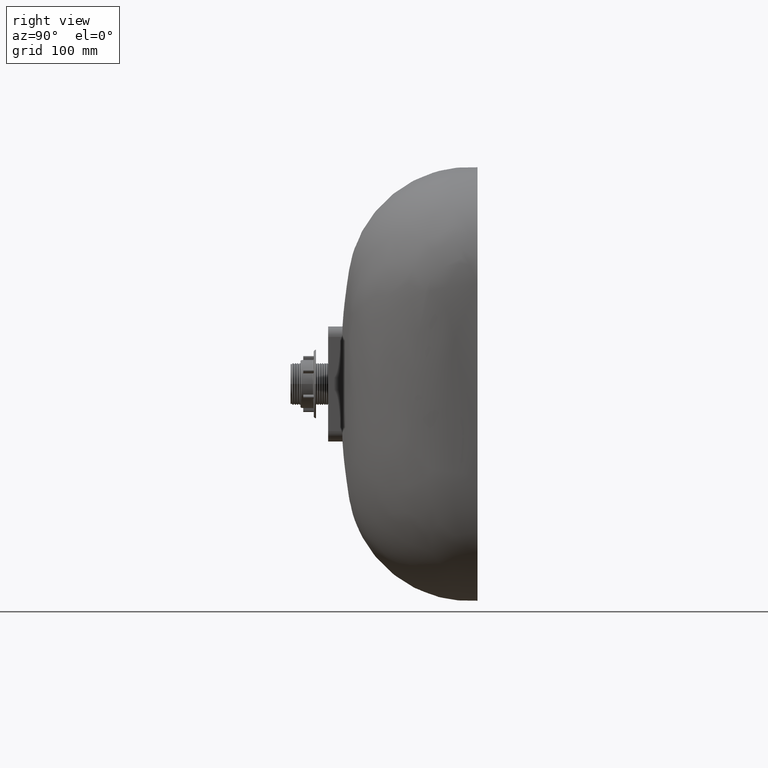
[diagram: clean part render]
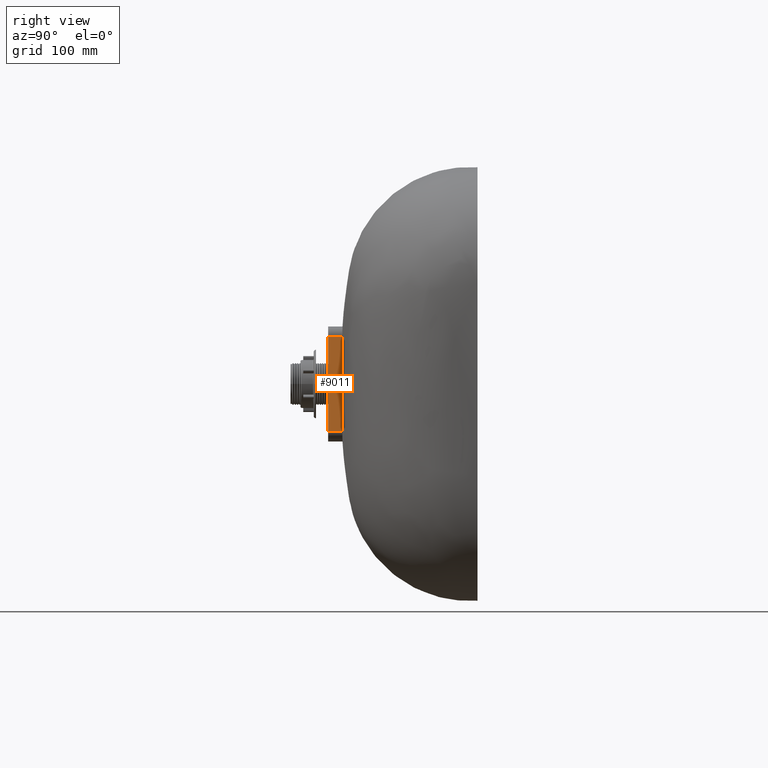
[diagram: same view with one face highlighted and labeled with its STEP entity id]
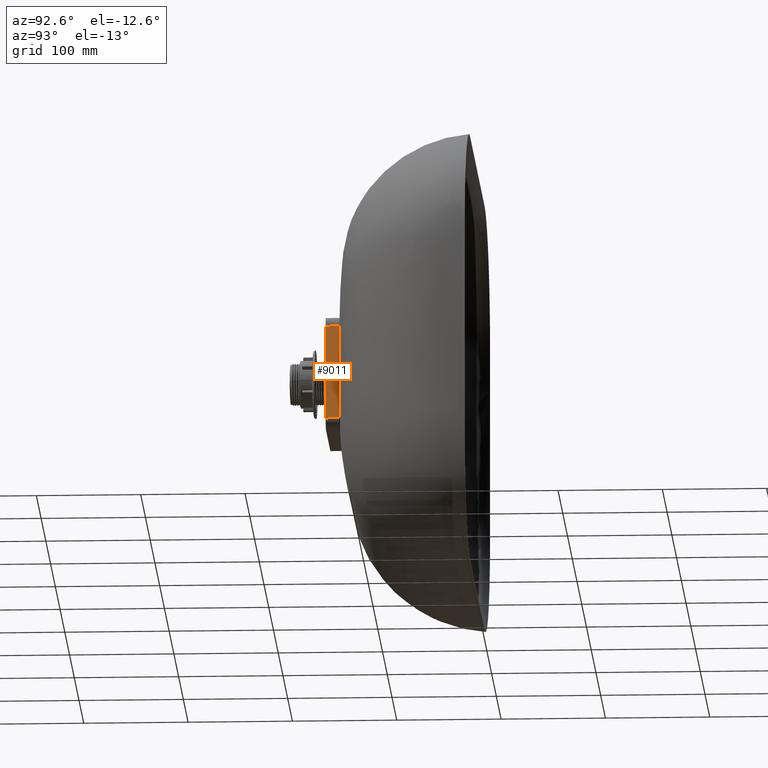
[diagram: same view with one face highlighted and labeled with its STEP entity id]
A machine part, right view. The second image highlights one B-rep face of the part: STEP entity #9011.
A second angle (auxiliary view) of the same face is appended — the face is thin or edge-on in the first view.
In plain terms, the highlighted planar face has unit normal (-1, 0, 0).
Its self-contained STEP definition (entity closure, byte-faithful):
#555 = CARTESIAN_POINT ( 'NONE',  ( 54.99999999999997900, -129.5138087378317900, -26.25021966743065600 ) ) ;
#1677 = CARTESIAN_POINT ( 'NONE',  ( 55.00000000000003600, -129.5902809703571800, -7.500079355521435800 ) ) ;
#1827 = EDGE_CURVE ( 'NONE', #11062, #11723, #8277, .T. ) ;
#2661 = ORIENTED_EDGE ( 'NONE', *, *, #5420, .T. ) ;
#2734 = CARTESIAN_POINT ( 'NONE',  ( 54.99999999999999300, -129.3747582021751400, -45.00000000000000000 ) ) ;
#2784 = CARTESIAN_POINT ( 'NONE',  ( 55.00000000000001400, -129.5672480042459300, 15.00019036894696400 ) ) ;
#2888 = B_SPLINE_CURVE_WITH_KNOTS ( 'NONE', 3,
 ( #2734, #4939, #13664, #7127, #555, #8225, #1677, #9324, #2784, #10426, #3879, #11533, #4984, #12627 ),
 .UNSPECIFIED., .F., .F.,
 ( 4, 2, 2, 2, 2, 2, 4 ),
 ( 2.310818364142162500E-015, 0.01125018086509841800, 0.02250036173019452600, 0.04500072346038674200, 0.06750108519057897200, 0.07875126605567507600, 0.09000144692077118000 ),
 .UNSPECIFIED. ) ;
#3181 = VERTEX_POINT ( 'NONE', #4062 ) ;
#3714 = EDGE_CURVE ( 'NONE', #11062, #6126, #2888, .T. ) ;
#3879 = CARTESIAN_POINT ( 'NONE',  ( 55.00000000000002800, -129.4913787024118500, 30.00022593502595900 ) ) ;
#4062 = CARTESIAN_POINT ( 'NONE',  ( 55.00000000000000700, -143.0000000000000300, 45.00000000000000000 ) ) ;
#4202 = VECTOR ( 'NONE', #9580, 1000.000000000000000 ) ;
#4479 = EDGE_LOOP ( 'NONE', ( #9626, #5077, #2661, #10976 ) ) ;
#4667 = PLANE ( 'NONE',  #9904 ) ;
#4939 = CARTESIAN_POINT ( 'NONE',  ( 54.99999999999997200, -129.4095024525357500, -41.25009709197533400 ) ) ;
#4984 = CARTESIAN_POINT ( 'NONE',  ( 54.99999999999998600, -129.4095024211454800, 41.25010048090150900 ) ) ;
#5077 = ORIENTED_EDGE ( 'NONE', *, *, #3714, .T. ) ;
#5420 = EDGE_CURVE ( 'NONE', #6126, #3181, #10796, .T. ) ;
#5633 = CARTESIAN_POINT ( 'NONE',  ( 54.99999999999999300, 500000.0000000000600, -45.00000000000000000 ) ) ;
#5779 = DIRECTION ( 'NONE',  ( 1.541976423090495100E-016, 0.0000000000000000000, 1.000000000000000000 ) ) ;
#6126 = VERTEX_POINT ( 'NONE', #13585 ) ;
#7127 = CARTESIAN_POINT ( 'NONE',  ( 54.99999999999996400, -129.4913787928155700, -30.00021210147710300 ) ) ;
#7308 = CARTESIAN_POINT ( 'NONE',  ( 54.99999999999999300, -143.0000000000000300, -45.00000000000000000 ) ) ;
#7314 = CARTESIAN_POINT ( 'NONE',  ( 55.00000000000000700, 500000.0000000000600, 45.00000000000000000 ) ) ;
#7627 = FACE_OUTER_BOUND ( 'NONE', #4479, .T. ) ;
#7947 = VECTOR ( 'NONE', #8950, 1000.000000000000000 ) ;
#8225 = CARTESIAN_POINT ( 'NONE',  ( 54.99999999999997200, -129.5672479842285700, -15.00019247676076400 ) ) ;
#8277 = LINE ( 'NONE', #5633, #7947 ) ;
#8950 = DIRECTION ( 'NONE',  ( -0.0000000000000000000, -1.000000000000000000, -0.0000000000000000000 ) ) ;
#9011 = ADVANCED_FACE ( 'NONE', ( #7627 ), #4667, .F. ) ;
#9324 = CARTESIAN_POINT ( 'NONE',  ( 55.00000000000002800, -129.5902808977694700, 7.500114897266552600 ) ) ;
#9469 = EDGE_CURVE ( 'NONE', #11723, #3181, #12234, .T. ) ;
#9580 = DIRECTION ( 'NONE',  ( 1.541976423090495400E-016, -0.0000000000000000000, 1.000000000000000000 ) ) ;
#9626 = ORIENTED_EDGE ( 'NONE', *, *, #1827, .F. ) ;
#9904 = AXIS2_PLACEMENT_3D ( 'NONE', #13347, #12306, #5779 ) ;
#10426 = CARTESIAN_POINT ( 'NONE',  ( 55.00000000000002100, -129.5138086638232800, 26.25023419460125900 ) ) ;
#10796 = LINE ( 'NONE', #7314, #13667 ) ;
#10976 = ORIENTED_EDGE ( 'NONE', *, *, #9469, .F. ) ;
#11062 = VERTEX_POINT ( 'NONE', #11636 ) ;
#11533 = CARTESIAN_POINT ( 'NONE',  ( 55.00000000000002800, -129.4385162869179200, 37.50015585267091500 ) ) ;
#11636 = CARTESIAN_POINT ( 'NONE',  ( 54.99999999999999300, -129.3747582021751400, -45.00000000000000000 ) ) ;
#11723 = VERTEX_POINT ( 'NONE', #7308 ) ;
#11793 = CARTESIAN_POINT ( 'NONE',  ( 54.99999999999999300, -143.0000000000000300, -45.00000000000000000 ) ) ;
#12234 = LINE ( 'NONE', #11793, #4202 ) ;
#12306 = DIRECTION ( 'NONE',  ( -1.000000000000000000, 0.0000000000000000000, 1.541976423090495100E-016 ) ) ;
#12627 = CARTESIAN_POINT ( 'NONE',  ( 54.99999999999997900, -129.3747582024117800, 45.00000000000000000 ) ) ;
#13347 = CARTESIAN_POINT ( 'NONE',  ( 54.99999999999999300, 500000.0000000000600, -45.00000000000000000 ) ) ;
#13585 = CARTESIAN_POINT ( 'NONE',  ( 54.99999999999997900, -129.3747582024117800, 45.00000000000000000 ) ) ;
#13664 = CARTESIAN_POINT ( 'NONE',  ( 54.99999999999999300, -129.4385163422931600, -37.50014900361252000 ) ) ;
#13667 = VECTOR ( 'NONE', #13855, 1000.000000000000000 ) ;
#13855 = DIRECTION ( 'NONE',  ( -0.0000000000000000000, -1.000000000000000000, -0.0000000000000000000 ) ) ;